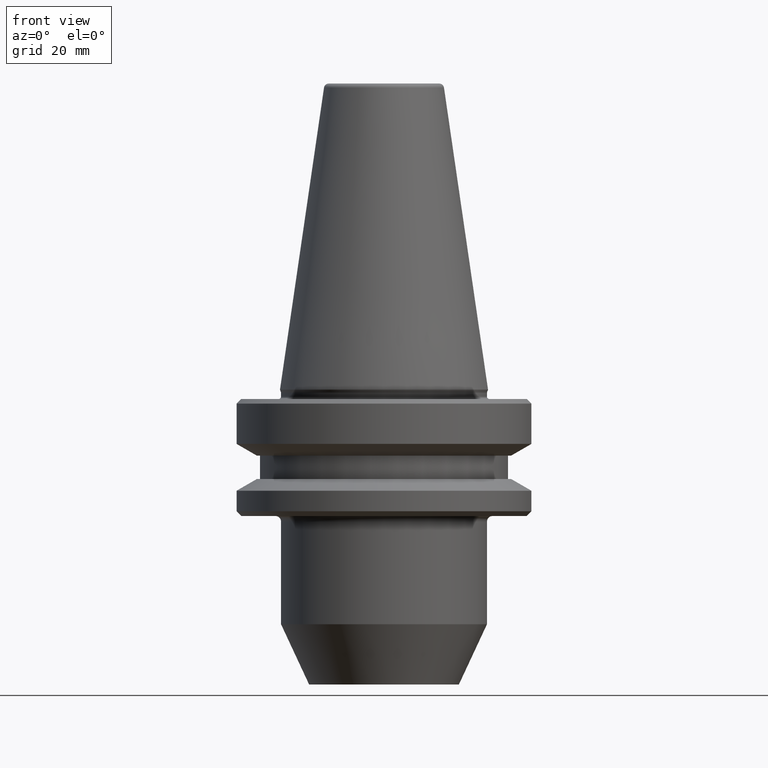
[diagram: clean part render]
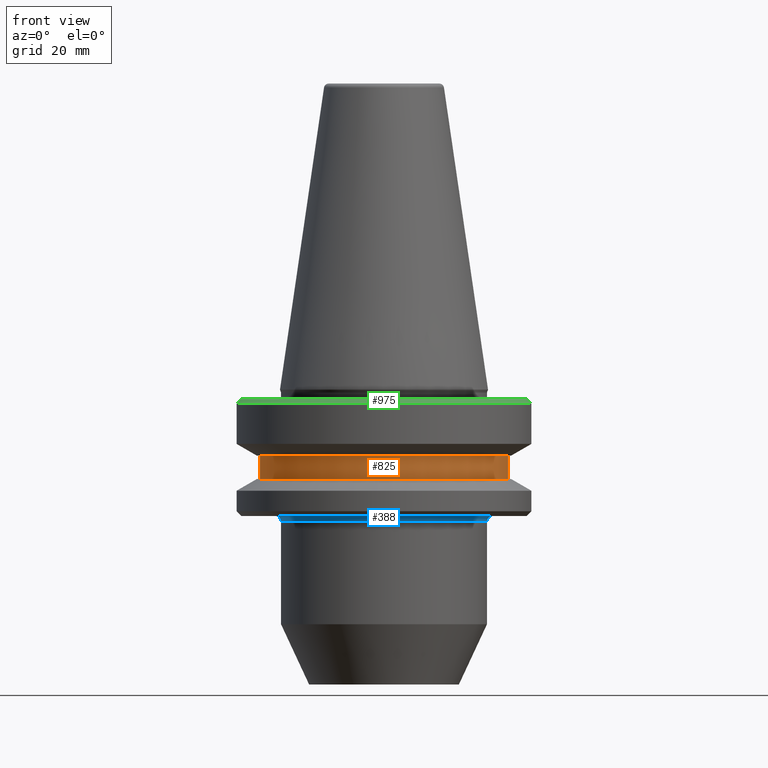
[diagram: same view with three faces highlighted in distinct colors, each labeled with its STEP entity id]
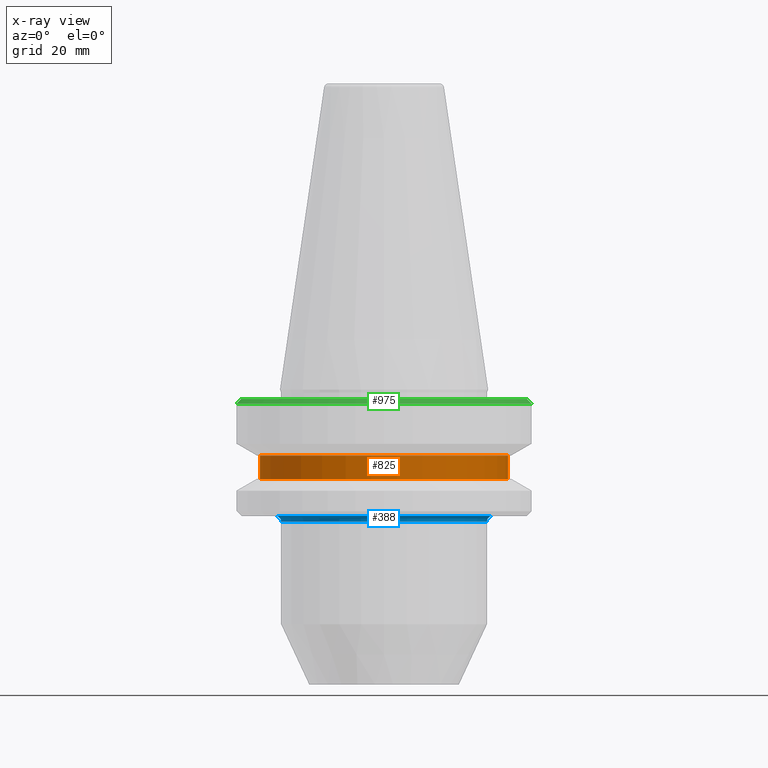
[diagram: x-ray of the same camera — body ghosted, the three highlighted faces saturated]
A machine part, front view with three faces highlighted in distinct colors.
The next image is the same camera in x-ray (body ghosted, the three faces saturated) — at least one of them is partly hidden behind the body in this view.
Their STEP definitions:

[orange] entity #825 — the highlighted cylindrical surface (partial cylindrical patch) has radius 26.5 mm, axis along (-0, -0, 1).
#62 = VERTEX_POINT ( 'NONE', #432 ) ;
#85 = AXIS2_PLACEMENT_3D ( 'NONE', #271, #915, #997 ) ;
#92 = AXIS2_PLACEMENT_3D ( 'NONE', #400, #522, #533 ) ;
#211 = CIRCLE ( 'NONE', #92, 26.50000000000007800 ) ;
#225 = VERTEX_POINT ( 'NONE', #405 ) ;
#227 = CARTESIAN_POINT ( 'NONE',  ( -26.50000000000007800, 3.245314017740495600E-015, -13.41128678834002700 ) ) ;
#271 = CARTESIAN_POINT ( 'NONE',  ( 0.0000000000000000000, 0.0000000000000000000, 82.74845858742440900 ) ) ;
#272 = LINE ( 'NONE', #435, #308 ) ;
#281 = DIRECTION ( 'NONE',  ( -0.0000000000000000000, -0.0000000000000000000, 1.000000000000000000 ) ) ;
#308 = VECTOR ( 'NONE', #903, 1000.000000000000000 ) ;
#330 = VERTEX_POINT ( 'NONE', #227 ) ;
#374 = ORIENTED_EDGE ( 'NONE', *, *, #904, .F. ) ;
#400 = CARTESIAN_POINT ( 'NONE',  ( 0.0000000000000000000, 0.0000000000000000000, -18.41128678844344800 ) ) ;
#405 = CARTESIAN_POINT ( 'NONE',  ( -26.50000000000007800, 3.245314017740495600E-015, -18.41128678844344800 ) ) ;
#432 = CARTESIAN_POINT ( 'NONE',  ( 26.50000000000007800, 0.0000000000000000000, -18.41128678844344800 ) ) ;
#435 = CARTESIAN_POINT ( 'NONE',  ( 26.50000000000007800, 0.0000000000000000000, 82.74845858742440900 ) ) ;
#437 = VECTOR ( 'NONE', #870, 1000.000000000000000 ) ;
#491 = ORIENTED_EDGE ( 'NONE', *, *, #900, .T. ) ;
#515 = ORIENTED_EDGE ( 'NONE', *, *, #851, .F. ) ;
#522 = DIRECTION ( 'NONE',  ( -0.0000000000000000000, -0.0000000000000000000, 1.000000000000000000 ) ) ;
#525 = VERTEX_POINT ( 'NONE', #907 ) ;
#533 = DIRECTION ( 'NONE',  ( 1.000000000000000000, 0.0000000000000000000, 0.0000000000000000000 ) ) ;
#590 = AXIS2_PLACEMENT_3D ( 'NONE', #762, #281, #853 ) ;
#611 = CIRCLE ( 'NONE', #590, 26.50000000000007800 ) ;
#646 = LINE ( 'NONE', #985, #437 ) ;
#762 = CARTESIAN_POINT ( 'NONE',  ( 0.0000000000000000000, 0.0000000000000000000, -13.41128678834002700 ) ) ;
#825 = ADVANCED_FACE ( 'NONE', ( #836 ), #1016, .T. ) ;
#832 = EDGE_CURVE ( 'NONE', #225, #62, #211, .T. ) ;
#836 = FACE_OUTER_BOUND ( 'NONE', #972, .T. ) ;
#851 = EDGE_CURVE ( 'NONE', #330, #525, #611, .T. ) ;
#853 = DIRECTION ( 'NONE',  ( 1.000000000000000000, 0.0000000000000000000, 0.0000000000000000000 ) ) ;
#870 = DIRECTION ( 'NONE',  ( -0.0000000000000000000, -0.0000000000000000000, 1.000000000000000000 ) ) ;
#900 = EDGE_CURVE ( 'NONE', #62, #525, #272, .T. ) ;
#903 = DIRECTION ( 'NONE',  ( -0.0000000000000000000, -0.0000000000000000000, 1.000000000000000000 ) ) ;
#904 = EDGE_CURVE ( 'NONE', #225, #330, #646, .T. ) ;
#907 = CARTESIAN_POINT ( 'NONE',  ( 26.50000000000007800, 0.0000000000000000000, -13.41128678834002700 ) ) ;
#915 = DIRECTION ( 'NONE',  ( -0.0000000000000000000, -0.0000000000000000000, 1.000000000000000000 ) ) ;
#972 = EDGE_LOOP ( 'NONE', ( #374, #977, #491, #515 ) ) ;
#977 = ORIENTED_EDGE ( 'NONE', *, *, #832, .T. ) ;
#985 = CARTESIAN_POINT ( 'NONE',  ( -26.50000000000007800, 3.245314017740495600E-015, 82.74845858742440900 ) ) ;
#997 = DIRECTION ( 'NONE',  ( 1.000000000000000000, 0.0000000000000000000, 0.0000000000000000000 ) ) ;
#1016 = CYLINDRICAL_SURFACE ( 'NONE', #85, 26.50000000000007800 ) ;

[blue] entity #388 — the highlighted toroidal blend (fillet) surface has major radius 23.2 mm and minor (blend) radius 1.2 mm.
#11 = VERTEX_POINT ( 'NONE', #963 ) ;
#75 = AXIS2_PLACEMENT_3D ( 'NONE', #1051, #831, #258 ) ;
#78 = DIRECTION ( 'NONE',  ( 1.000000000000000000, 0.0000000000000000000, 0.0000000000000000000 ) ) ;
#108 = FACE_OUTER_BOUND ( 'NONE', #571, .T. ) ;
#128 = DIRECTION ( 'NONE',  ( 1.224646799147353200E-016, 1.000000000000000000, 0.0000000000000000000 ) ) ;
#187 = EDGE_CURVE ( 'NONE', #594, #810, #267, .T. ) ;
#190 = ORIENTED_EDGE ( 'NONE', *, *, #187, .F. ) ;
#253 = ORIENTED_EDGE ( 'NONE', *, *, #944, .T. ) ;
#258 = DIRECTION ( 'NONE',  ( 0.0000000000000000000, 0.0000000000000000000, -1.000000000000000000 ) ) ;
#260 = AXIS2_PLACEMENT_3D ( 'NONE', #727, #128, #347 ) ;
#267 = CIRCLE ( 'NONE', #475, 23.19999999999999900 ) ;
#302 = CARTESIAN_POINT ( 'NONE',  ( -22.00000000000000000, 2.694222958124176800E-015, -27.51128678844369400 ) ) ;
#329 = TOROIDAL_SURFACE ( 'NONE', #354, 23.19999999999999900, 1.199999999999998000 ) ;
#347 = DIRECTION ( 'NONE',  ( -1.000000000000000000, 1.224646799147350200E-016, 0.0000000000000000000 ) ) ;
#354 = AXIS2_PLACEMENT_3D ( 'NONE', #783, #722, #78 ) ;
#359 = AXIS2_PLACEMENT_3D ( 'NONE', #553, #769, #447 ) ;
#370 = EDGE_CURVE ( 'NONE', #543, #11, #966, .T. ) ;
#388 = ADVANCED_FACE ( 'NONE', ( #108 ), #329, .F. ) ;
#409 = CIRCLE ( 'NONE', #75, 1.199999999999999700 ) ;
#447 = DIRECTION ( 'NONE',  ( 1.000000000000000000, 0.0000000000000000000, 0.0000000000000000000 ) ) ;
#475 = AXIS2_PLACEMENT_3D ( 'NONE', #801, #757, #699 ) ;
#543 = VERTEX_POINT ( 'NONE', #302 ) ;
#553 = CARTESIAN_POINT ( 'NONE',  ( 0.0000000000000000000, 0.0000000000000000000, -27.51128678844369400 ) ) ;
#568 = EDGE_CURVE ( 'NONE', #810, #11, #409, .T. ) ;
#571 = EDGE_LOOP ( 'NONE', ( #190, #253, #1020, #1015 ) ) ;
#594 = VERTEX_POINT ( 'NONE', #656 ) ;
#656 = CARTESIAN_POINT ( 'NONE',  ( -23.19999999999999900, 2.841180574021859100E-015, -26.31128678844368800 ) ) ;
#667 = CARTESIAN_POINT ( 'NONE',  ( 23.19999999999999900, 0.0000000000000000000, -26.31128678844368800 ) ) ;
#699 = DIRECTION ( 'NONE',  ( 1.000000000000000000, 0.0000000000000000000, 0.0000000000000000000 ) ) ;
#722 = DIRECTION ( 'NONE',  ( -0.0000000000000000000, -0.0000000000000000000, 1.000000000000000000 ) ) ;
#727 = CARTESIAN_POINT ( 'NONE',  ( -23.19999999999999900, 2.841180574021859100E-015, -27.51128678844368700 ) ) ;
#757 = DIRECTION ( 'NONE',  ( -0.0000000000000000000, -0.0000000000000000000, 1.000000000000000000 ) ) ;
#769 = DIRECTION ( 'NONE',  ( -0.0000000000000000000, -0.0000000000000000000, 1.000000000000000000 ) ) ;
#783 = CARTESIAN_POINT ( 'NONE',  ( 0.0000000000000000000, 0.0000000000000000000, -27.51128678844368700 ) ) ;
#801 = CARTESIAN_POINT ( 'NONE',  ( 0.0000000000000000000, 0.0000000000000000000, -26.31128678844368800 ) ) ;
#810 = VERTEX_POINT ( 'NONE', #667 ) ;
#831 = DIRECTION ( 'NONE',  ( 0.0000000000000000000, -1.000000000000000000, 0.0000000000000000000 ) ) ;
#944 = EDGE_CURVE ( 'NONE', #594, #543, #1031, .T. ) ;
#963 = CARTESIAN_POINT ( 'NONE',  ( 22.00000000000000000, 0.0000000000000000000, -27.51128678844369400 ) ) ;
#966 = CIRCLE ( 'NONE', #359, 22.00000000000000000 ) ;
#1015 = ORIENTED_EDGE ( 'NONE', *, *, #568, .F. ) ;
#1020 = ORIENTED_EDGE ( 'NONE', *, *, #370, .T. ) ;
#1031 = CIRCLE ( 'NONE', #260, 1.199999999999999700 ) ;
#1051 = CARTESIAN_POINT ( 'NONE',  ( 23.19999999999999900, 0.0000000000000000000, -27.51128678844368700 ) ) ;

[green] entity #975 — the highlighted conical surface has half-angle 45 deg.
#35 = CARTESIAN_POINT ( 'NONE',  ( 0.0000000000000000000, 0.0000000000000000000, -2.311286788340083400 ) ) ;
#117 = DIRECTION ( 'NONE',  ( 1.000000000000000000, 0.0000000000000000000, 0.0000000000000000000 ) ) ;
#171 = VECTOR ( 'NONE', #399, 1000.000000000000000 ) ;
#191 = VERTEX_POINT ( 'NONE', #218 ) ;
#200 = DIRECTION ( 'NONE',  ( 0.7071067811865474600, 8.659560562354931600E-017, -0.7071067811865475700 ) ) ;
#218 = CARTESIAN_POINT ( 'NONE',  ( 31.49999999999986100, 0.0000000000000000000, -2.311286788340083400 ) ) ;
#228 = ORIENTED_EDGE ( 'NONE', *, *, #526, .F. ) ;
#292 = CARTESIAN_POINT ( 'NONE',  ( -31.49999999999986100, 0.0000000000000000000, -2.311286788340083400 ) ) ;
#332 = CONICAL_SURFACE ( 'NONE', #596, 31.49999999999986100, 0.7853981633974482800 ) ;
#361 = LINE ( 'NONE', #292, #171 ) ;
#366 = VERTEX_POINT ( 'NONE', #477 ) ;
#372 = CARTESIAN_POINT ( 'NONE',  ( -30.49999999999986100, 0.0000000000000000000, -1.311286788340082500 ) ) ;
#393 = CARTESIAN_POINT ( 'NONE',  ( 0.0000000000000000000, 0.0000000000000000000, -1.311286788340082500 ) ) ;
#395 = FACE_OUTER_BOUND ( 'NONE', #621, .T. ) ;
#399 = DIRECTION ( 'NONE',  ( -0.7071067811865474600, 0.0000000000000000000, -0.7071067811865475700 ) ) ;
#421 = ORIENTED_EDGE ( 'NONE', *, *, #849, .T. ) ;
#474 = DIRECTION ( 'NONE',  ( 1.000000000000000000, 0.0000000000000000000, 0.0000000000000000000 ) ) ;
#477 = CARTESIAN_POINT ( 'NONE',  ( -31.49999999999986100, 3.857637417314145300E-015, -2.311286788340083400 ) ) ;
#526 = EDGE_CURVE ( 'NONE', #609, #191, #1052, .T. ) ;
#555 = DIRECTION ( 'NONE',  ( -1.000000000000000000, 0.0000000000000000000, 0.0000000000000000000 ) ) ;
#566 = CARTESIAN_POINT ( 'NONE',  ( 31.49999999999986100, 3.857637417314145300E-015, -2.311286788340083400 ) ) ;
#583 = ORIENTED_EDGE ( 'NONE', *, *, #971, .F. ) ;
#596 = AXIS2_PLACEMENT_3D ( 'NONE', #864, #1019, #555 ) ;
#609 = VERTEX_POINT ( 'NONE', #833 ) ;
#621 = EDGE_LOOP ( 'NONE', ( #228, #583, #1006, #421 ) ) ;
#627 = DIRECTION ( 'NONE',  ( -0.0000000000000000000, -0.0000000000000000000, 1.000000000000000000 ) ) ;
#631 = AXIS2_PLACEMENT_3D ( 'NONE', #393, #941, #474 ) ;
#724 = AXIS2_PLACEMENT_3D ( 'NONE', #35, #627, #117 ) ;
#765 = VERTEX_POINT ( 'NONE', #372 ) ;
#808 = CIRCLE ( 'NONE', #724, 31.49999999999986100 ) ;
#811 = CIRCLE ( 'NONE', #631, 30.49999999999986100 ) ;
#833 = CARTESIAN_POINT ( 'NONE',  ( 30.49999999999986100, 3.796405077356777800E-015, -1.311286788340082500 ) ) ;
#846 = VECTOR ( 'NONE', #200, 1000.000000000000000 ) ;
#849 = EDGE_CURVE ( 'NONE', #366, #191, #808, .T. ) ;
#864 = CARTESIAN_POINT ( 'NONE',  ( 0.0000000000000000000, 0.0000000000000000000, -2.311286788340083400 ) ) ;
#941 = DIRECTION ( 'NONE',  ( -0.0000000000000000000, -0.0000000000000000000, 1.000000000000000000 ) ) ;
#971 = EDGE_CURVE ( 'NONE', #765, #609, #811, .T. ) ;
#975 = ADVANCED_FACE ( 'NONE', ( #395 ), #332, .T. ) ;
#980 = EDGE_CURVE ( 'NONE', #765, #366, #361, .T. ) ;
#1006 = ORIENTED_EDGE ( 'NONE', *, *, #980, .T. ) ;
#1019 = DIRECTION ( 'NONE',  ( 0.0000000000000000000, 0.0000000000000000000, -1.000000000000000000 ) ) ;
#1052 = LINE ( 'NONE', #566, #846 ) ;